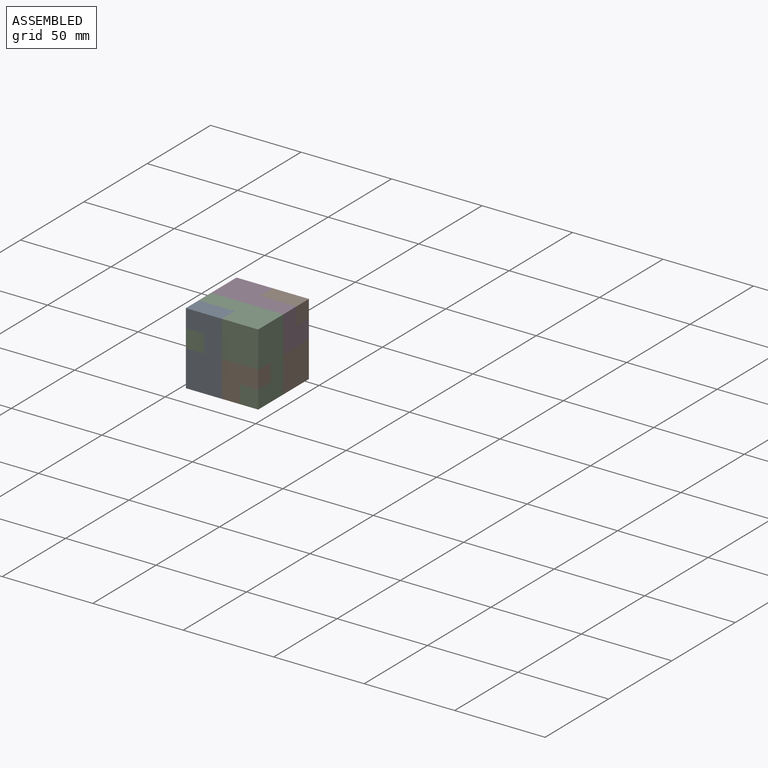
[diagram: assembled view]
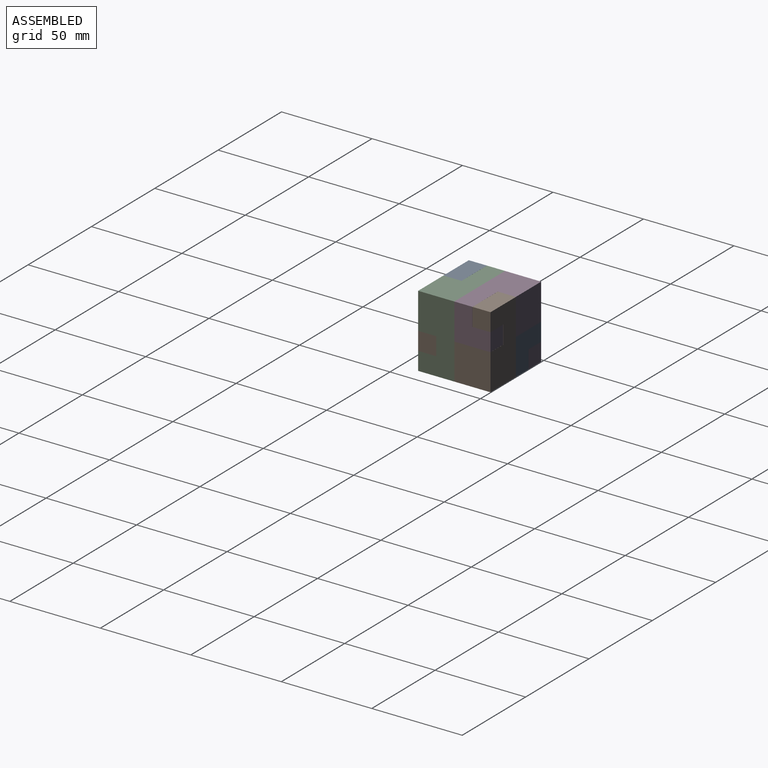
[diagram: assembled view, second angle]
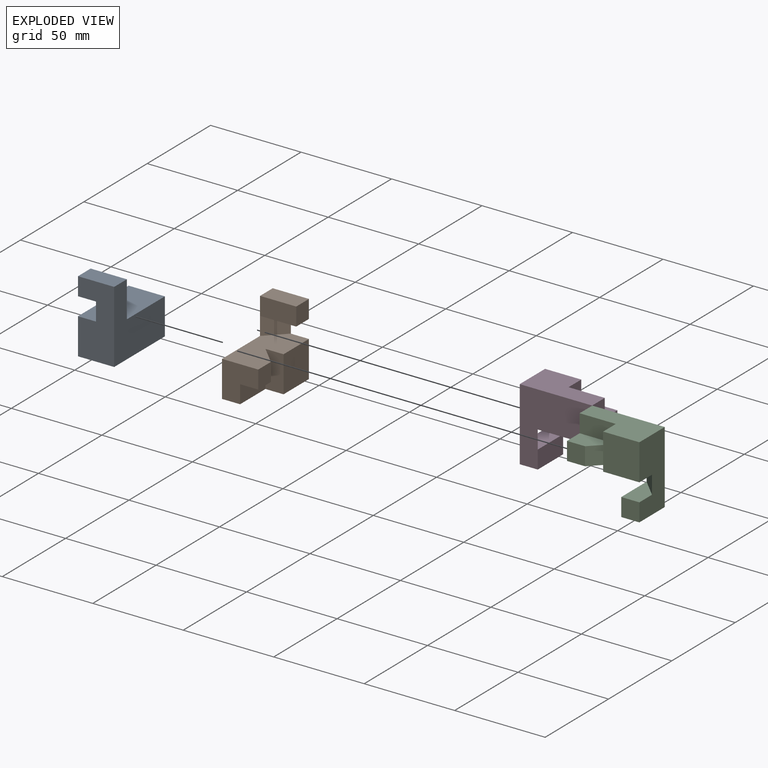
[diagram: exploded view]
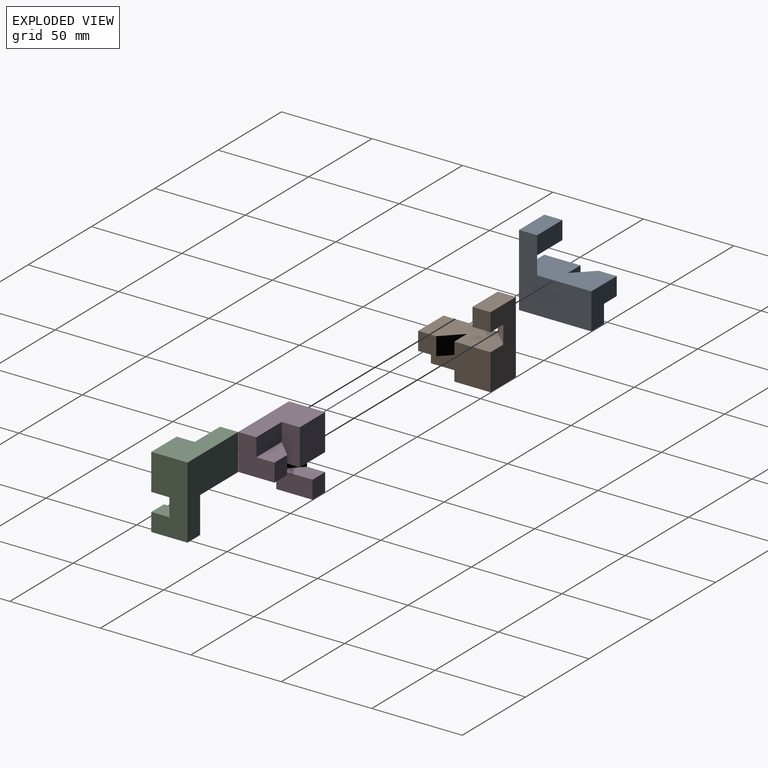
[diagram: exploded view, second angle]
ASSEMBLY  parts=4 mates=3
PART A: 16 faces, bbox 40x40x20 mm
  f0: plane 10x10mm, normal (0,0,1), area 100mm2, adj f4,f7,f8,f15
  f1: plane 10x10mm, normal (0,0,1), area 100mm2, adj f2,f5,f6,f13
  f2: plane 20x10mm, normal (-1,0,0), area 150mm2, adj f1,f5,f12,f13
  f3: plane 40x20mm, normal (-1,0,0), area 600mm2, adj f4,f5,f9,f10,f11,f12
  f4: plane 40x20mm, normal (0,-1,0), area 700mm2, adj f0,f3,f6,f8,f9,f10,f14,f15
  f5: plane 20x20mm, normal (0,1,0), area 300mm2, adj f1,f2,f3,f6,f10,f12
  f6: plane 40x20mm, normal (1,0,0), area 700mm2, adj f1,f4,f5,f9,f10,f11,f13,f14
  f7: plane 20x10mm, normal (0,1,0), area 200mm2, adj f0,f8,f10,f15
  f8: plane 20x10mm, normal (1,0,0), area 200mm2, adj f0,f4,f7,f10
  f9: plane 20x20mm, normal (0,0,1), area 400mm2, adj f3,f4,f6,f11
  f10: plane 40x40mm, normal (0,0,-1), area 1000mm2, adj f3,f4,f5,f6,f7,f8,f14
  f11: plane 20x10mm, normal (0,1,0), area 200mm2, adj f3,f6,f9,f12,f13
  f12: plane 20x10mm, normal (0,0,1), area 200mm2, adj f2,f3,f5,f11
  f13: plane 10x10mm, normal (0,-0.71,0.71), area 141.4mm2, adj f1,f2,f6,f11
  f14: plane 10x10mm, normal (0,0.71,0.71), area 141.4mm2, adj f4,f6,f10,f15
  f15: plane 20x10mm, normal (-1,0,0), area 150mm2, adj f0,f4,f7,f14
PART B: 16 faces, bbox 40x40x20 mm
  f0: plane 10x10mm, normal (0,0,1), area 100mm2, adj f4,f7,f8,f15
  f1: plane 10x10mm, normal (0,0,1), area 100mm2, adj f2,f5,f6,f13
  f2: plane 20x10mm, normal (1,0,0), area 150mm2, adj f1,f5,f12,f13
  f3: plane 40x20mm, normal (1,0,0), area 600mm2, adj f4,f5,f9,f10,f11,f12
  f4: plane 40x20mm, normal (0,1,0), area 700mm2, adj f0,f3,f6,f8,f9,f10,f14,f15
  f5: plane 20x20mm, normal (0,-1,0), area 300mm2, adj f1,f2,f3,f6,f10,f12
  f6: plane 40x20mm, normal (-1,0,0), area 700mm2, adj f1,f4,f5,f9,f10,f11,f13,f14
  f7: plane 20x10mm, normal (0,-1,0), area 200mm2, adj f0,f8,f10,f15
  f8: plane 20x10mm, normal (-1,0,0), area 200mm2, adj f0,f4,f7,f10
  f9: plane 20x20mm, normal (0,0,1), area 400mm2, adj f3,f4,f6,f11
  f10: plane 40x40mm, normal (0,0,-1), area 1000mm2, adj f3,f4,f5,f6,f7,f8,f14
  f11: plane 20x10mm, normal (0,-1,0), area 200mm2, adj f3,f6,f9,f12,f13
  f12: plane 20x10mm, normal (0,0,1), area 200mm2, adj f2,f3,f5,f11
  f13: plane 10x10mm, normal (0,0.71,0.71), area 141.4mm2, adj f1,f2,f6,f11
  f14: plane 10x10mm, normal (0,-0.71,0.71), area 141.4mm2, adj f4,f6,f10,f15
  f15: plane 20x10mm, normal (1,0,0), area 150mm2, adj f0,f4,f7,f14
PART C: 16 faces, bbox 40x40x20 mm
  f0: plane 10x10mm, normal (0,0,1), area 100mm2, adj f4,f7,f8,f15
  f1: plane 10x10mm, normal (0,0,1), area 100mm2, adj f2,f5,f6,f13
  f2: plane 20x10mm, normal (-1,0,0), area 150mm2, adj f1,f5,f12,f13
  f3: plane 40x20mm, normal (-1,0,0), area 600mm2, adj f4,f5,f9,f10,f11,f12
  f4: plane 40x20mm, normal (0,1,0), area 700mm2, adj f0,f3,f6,f8,f9,f10,f14,f15
  f5: plane 20x20mm, normal (0,-1,0), area 300mm2, adj f1,f2,f3,f6,f10,f12
  f6: plane 40x20mm, normal (1,0,0), area 700mm2, adj f1,f4,f5,f9,f10,f11,f13,f14
  f7: plane 20x10mm, normal (0,-1,0), area 200mm2, adj f0,f8,f10,f15
  f8: plane 20x10mm, normal (1,0,0), area 200mm2, adj f0,f4,f7,f10
  f9: plane 20x20mm, normal (0,0,1), area 400mm2, adj f3,f4,f6,f11
  f10: plane 40x40mm, normal (0,0,-1), area 1000mm2, adj f3,f4,f5,f6,f7,f8,f14
  f11: plane 20x10mm, normal (0,-1,0), area 200mm2, adj f3,f6,f9,f12,f13
  f12: plane 20x10mm, normal (0,0,1), area 200mm2, adj f2,f3,f5,f11
  f13: plane 10x10mm, normal (0,0.71,0.71), area 141.4mm2, adj f1,f2,f6,f11
  f14: plane 10x10mm, normal (0,-0.71,0.71), area 141.4mm2, adj f4,f6,f10,f15
  f15: plane 20x10mm, normal (-1,0,0), area 150mm2, adj f0,f4,f7,f14
PART D: 16 faces, bbox 40x40x20 mm
  f0: plane 10x10mm, normal (0,0,1), area 100mm2, adj f4,f7,f8,f15
  f1: plane 10x10mm, normal (0,0,1), area 100mm2, adj f2,f5,f6,f13
  f2: plane 20x10mm, normal (1,0,0), area 150mm2, adj f1,f5,f12,f13
  f3: plane 40x20mm, normal (1,0,0), area 600mm2, adj f4,f5,f9,f10,f11,f12
  f4: plane 40x20mm, normal (0,-1,0), area 700mm2, adj f0,f3,f6,f8,f9,f10,f14,f15
  f5: plane 20x20mm, normal (0,1,0), area 300mm2, adj f1,f2,f3,f6,f10,f12
  f6: plane 40x20mm, normal (-1,0,0), area 700mm2, adj f1,f4,f5,f9,f10,f11,f13,f14
  f7: plane 20x10mm, normal (0,1,0), area 200mm2, adj f0,f8,f10,f15
  f8: plane 20x10mm, normal (-1,0,0), area 200mm2, adj f0,f4,f7,f10
  f9: plane 20x20mm, normal (0,0,1), area 400mm2, adj f3,f4,f6,f11
  f10: plane 40x40mm, normal (0,0,-1), area 1000mm2, adj f3,f4,f5,f6,f7,f8,f14
  f11: plane 20x10mm, normal (0,1,0), area 200mm2, adj f3,f6,f9,f12,f13
  f12: plane 20x10mm, normal (0,0,1), area 200mm2, adj f2,f3,f5,f11
  f13: plane 10x10mm, normal (0,-0.71,0.71), area 141.4mm2, adj f1,f2,f6,f11
  f14: plane 10x10mm, normal (0,0.71,0.71), area 141.4mm2, adj f4,f6,f10,f15
  f15: plane 20x10mm, normal (1,0,0), area 150mm2, adj f0,f4,f7,f14
PLACE A rot(axis=(0,-1,0),90deg) t=(-26.37,-38.9,-47.11)mm
PLACE B rot(axis=(0,1,0),90deg) t=(-26.37,1.12,-47.11)mm
PLACE C rot(axis=(0.58,0.58,-0.58),120deg) t=(-6.37,-18.88,-7.11)mm
PLACE D rot(axis=(-0.58,-0.58,-0.58),120deg) t=(-46.37,-18.9,-7.11)mm
MATE parallel A.f10 <-> B.f10  axis (1,0,0) through (-26.37,-21.9,-33.11)mm
MATE parallel D.f7 <-> A.f12  axis (1,0,0) through (-36.37,-8.9,-42.11)mm
MATE parallel C.f7 <-> B.f12  axis (-1,0,0) through (-16.37,-28.88,-42.11)mm
